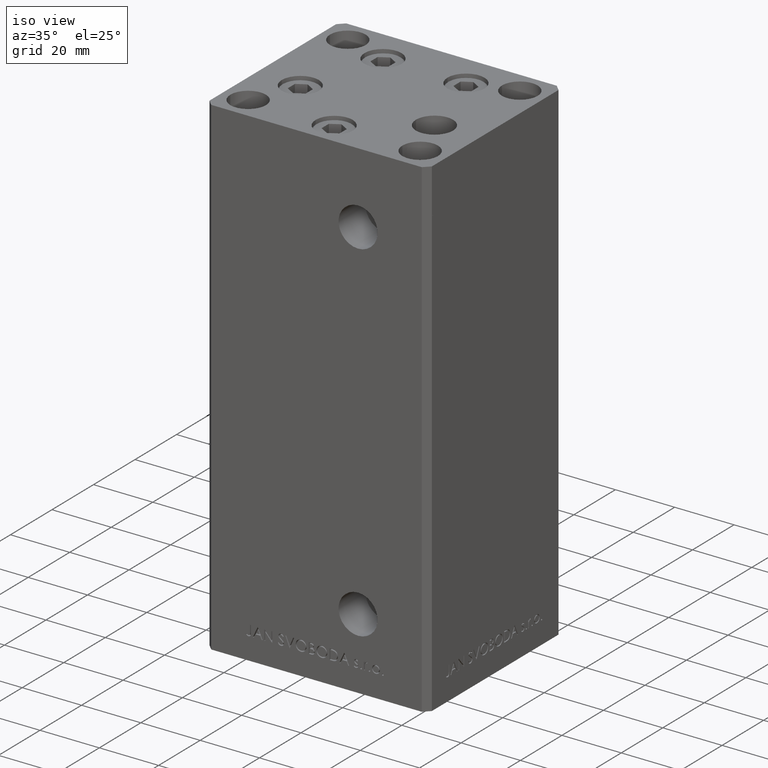
[diagram: clean part render]
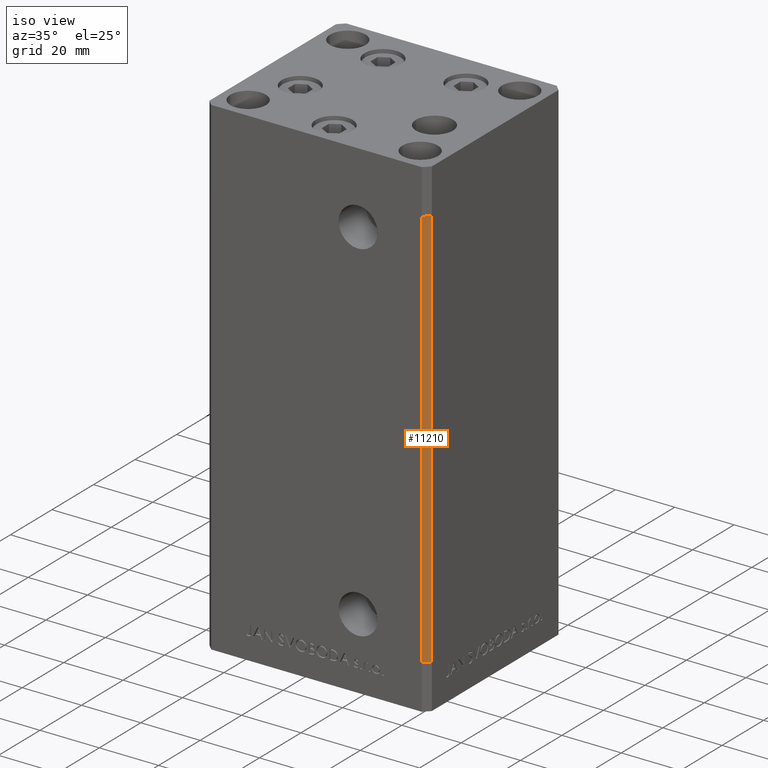
[diagram: same view with one face highlighted and labeled with its STEP entity id]
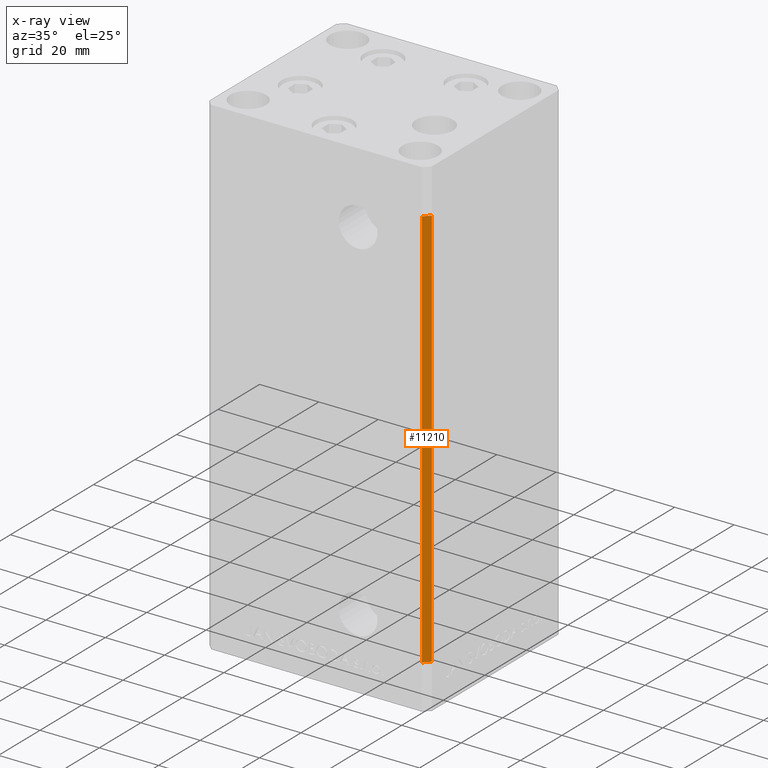
[diagram: x-ray of the same camera — body ghosted, the highlighted face saturated]
A machine part, iso view. The second image highlights one B-rep face of the part: STEP entity #11210.
The next image is the same camera in x-ray: the body ghosted, the highlighted face saturated — about 0% of this face is hidden behind the body in this view.
In plain terms, the highlighted planar face has unit normal (0.7071, -0.7071, 0).
Its self-contained STEP definition (entity closure, byte-faithful):
#299 = DIRECTION ( 'NONE',  ( 0.7071067811865474617, 0.7071067811865474617, 0.000000000000000000 ) ) ;
#1524 = CARTESIAN_POINT ( 'NONE',  ( 37.49999999999999289, -30.50000000000000000, 136.0000000000000000 ) ) ;
#1665 = LINE ( 'NONE', #12722, #42259 ) ;
#2165 = VECTOR ( 'NONE', #20589, 1000.000000000000000 ) ;
#4796 = CARTESIAN_POINT ( 'NONE',  ( 37.49999999999999289, -30.50000000000000000, 136.0000000000000000 ) ) ;
#6529 = ORIENTED_EDGE ( 'NONE', *, *, #44149, .T. ) ;
#8798 = DIRECTION ( 'NONE',  ( 0.7071067811865475727, -0.7071067811865475727, 0.000000000000000000 ) ) ;
#9058 = ORIENTED_EDGE ( 'NONE', *, *, #13821, .F. ) ;
#9249 = AXIS2_PLACEMENT_3D ( 'NONE', #4796, #8798, #299 ) ;
#9935 = CARTESIAN_POINT ( 'NONE',  ( 35.49999999999999289, -32.50000000000000000, 0.000000000000000000 ) ) ;
#10989 = DIRECTION ( 'NONE',  ( -0.000000000000000000, -0.000000000000000000, -1.000000000000000000 ) ) ;
#11210 = ADVANCED_FACE ( 'NONE', ( #38490 ), #24128, .T. ) ;
#12722 = CARTESIAN_POINT ( 'NONE',  ( 37.49999999999999289, -30.50000000000000000, 0.000000000000000000 ) ) ;
#13445 = EDGE_CURVE ( 'NONE', #19685, #20854, #1665, .T. ) ;
#13821 = EDGE_CURVE ( 'NONE', #33369, #19685, #16590, .T. ) ;
#15342 = ORIENTED_EDGE ( 'NONE', *, *, #27023, .T. ) ;
#16590 = LINE ( 'NONE', #1524, #2165 ) ;
#18779 = CARTESIAN_POINT ( 'NONE',  ( 35.49999999999999289, -32.50000000000000000, 136.0000000000000000 ) ) ;
#19685 = VERTEX_POINT ( 'NONE', #45937 ) ;
#20589 = DIRECTION ( 'NONE',  ( -0.000000000000000000, -0.000000000000000000, -1.000000000000000000 ) ) ;
#20854 = VERTEX_POINT ( 'NONE', #9935 ) ;
#24128 = PLANE ( 'NONE',  #9249 ) ;
#26980 = VECTOR ( 'NONE', #49393, 1000.000000000000114 ) ;
#27023 = EDGE_CURVE ( 'NONE', #34557, #20854, #49443, .T. ) ;
#30296 = LINE ( 'NONE', #34063, #26980 ) ;
#33369 = VERTEX_POINT ( 'NONE', #44959 ) ;
#34063 = CARTESIAN_POINT ( 'NONE',  ( 37.49999999999999289, -30.50000000000000000, 136.0000000000000000 ) ) ;
#34557 = VERTEX_POINT ( 'NONE', #45654 ) ;
#37054 = ORIENTED_EDGE ( 'NONE', *, *, #13445, .F. ) ;
#38490 = FACE_OUTER_BOUND ( 'NONE', #45392, .T. ) ;
#38592 = VECTOR ( 'NONE', #10989, 1000.000000000000000 ) ;
#39871 = DIRECTION ( 'NONE',  ( -0.7071067811865474617, -0.7071067811865474617, 0.000000000000000000 ) ) ;
#42259 = VECTOR ( 'NONE', #39871, 1000.000000000000114 ) ;
#44149 = EDGE_CURVE ( 'NONE', #33369, #34557, #30296, .T. ) ;
#44959 = CARTESIAN_POINT ( 'NONE',  ( 37.49999999999999289, -30.50000000000000000, 136.0000000000000000 ) ) ;
#45392 = EDGE_LOOP ( 'NONE', ( #37054, #9058, #6529, #15342 ) ) ;
#45654 = CARTESIAN_POINT ( 'NONE',  ( 35.49999999999999289, -32.50000000000000000, 136.0000000000000000 ) ) ;
#45937 = CARTESIAN_POINT ( 'NONE',  ( 37.49999999999999289, -30.50000000000000000, 0.000000000000000000 ) ) ;
#49393 = DIRECTION ( 'NONE',  ( -0.7071067811865474617, -0.7071067811865474617, 0.000000000000000000 ) ) ;
#49443 = LINE ( 'NONE', #18779, #38592 ) ;